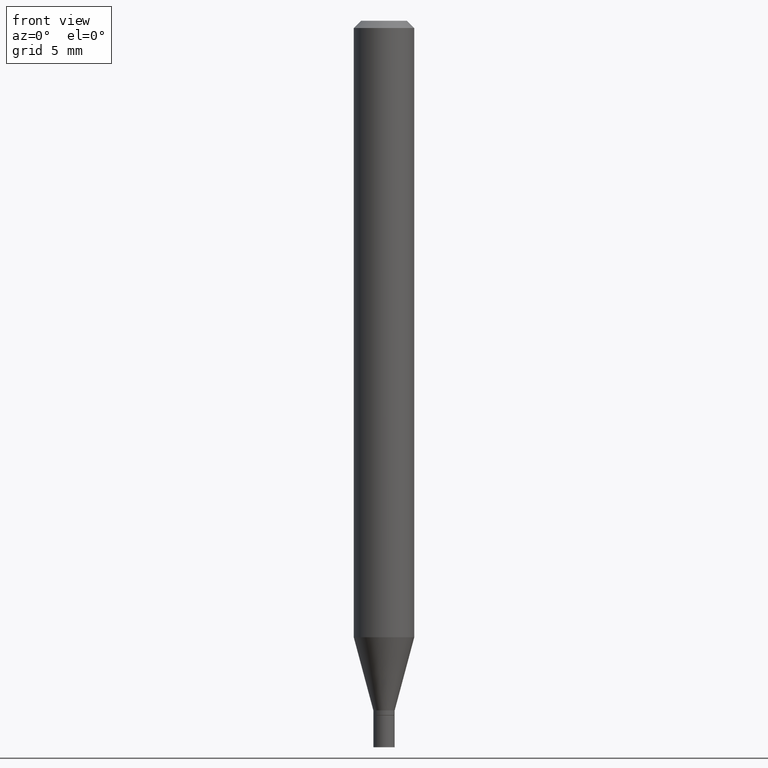
[diagram: clean part render]
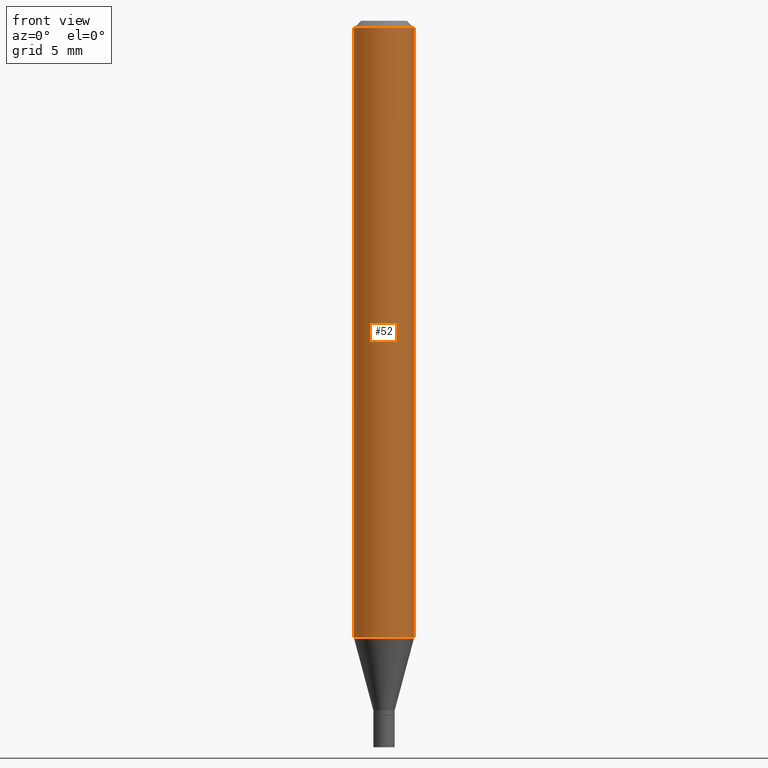
[diagram: same view with one face highlighted and labeled with its STEP entity id]
A machine part, front view. The second image highlights one B-rep face of the part: STEP entity #52.
In plain terms, the highlighted cylindrical surface (edge-blend (fillet) strip) has radius 1.5875 mm, axis along (-0, 0, 1).
Its self-contained STEP definition (entity closure, byte-faithful):
#7 = DIRECTION ( 'NONE',  ( 1.000000000000000000, -6.982962677686266711E-15, 4.876176775795935793E-29 ) ) ;
#20 = DIRECTION ( 'NONE',  ( -2.445468806185136597E-29, 3.491481338843145583E-15, 1.000000000000000000 ) ) ;
#49 = CARTESIAN_POINT ( 'NONE',  ( -0.06250000000000000000, 4.440892098500626162E-16, -3.074334431409316114E-30 ) ) ;
#52 = ADVANCED_FACE ( 'NONE', ( #215 ), #355, .T. ) ;
#58 = AXIS2_PLACEMENT_3D ( 'NONE', #188, #387, #7 ) ;
#59 = CARTESIAN_POINT ( 'NONE',  ( -0.06250000000000000000, -1.804166302005196625E-15, -0.01499999999999999944 ) ) ;
#85 = EDGE_CURVE ( 'NONE', #414, #376, #440, .T. ) ;
#96 = CARTESIAN_POINT ( 'NONE',  ( 0.06250000000000000000, -4.880573970983262678E-15, -1.272851942293460770 ) ) ;
#104 = CARTESIAN_POINT ( 'NONE',  ( 3.668203209277705088E-31, -5.237222008264718399E-17, -0.01499999999999999944 ) ) ;
#114 = EDGE_CURVE ( 'NONE', #337, #414, #429, .T. ) ;
#126 = LINE ( 'NONE', #49, #148 ) ;
#127 = DIRECTION ( 'NONE',  ( 1.000000000000000000, -6.982962677686266711E-15, 0.000000000000000000 ) ) ;
#148 = VECTOR ( 'NONE', #263, 39.37007874015748143 ) ;
#169 = ORIENTED_EDGE ( 'NONE', *, *, #430, .F. ) ;
#181 = ORIENTED_EDGE ( 'NONE', *, *, #114, .T. ) ;
#183 = EDGE_CURVE ( 'NONE', #337, #433, #126, .T. ) ;
#188 = CARTESIAN_POINT ( 'NONE',  ( 0.000000000000000000, 0.000000000000000000, 0.000000000000000000 ) ) ;
#196 = DIRECTION ( 'NONE',  ( 1.000000000000000000, -6.982962677686262766E-15, 0.000000000000000000 ) ) ;
#207 = AXIS2_PLACEMENT_3D ( 'NONE', #104, #20, #127 ) ;
#215 = FACE_OUTER_BOUND ( 'NONE', #248, .T. ) ;
#237 = CARTESIAN_POINT ( 'NONE',  ( -0.06250000000000000000, -4.000049593777808392E-15, -1.272851942293460770 ) ) ;
#248 = EDGE_LOOP ( 'NONE', ( #272, #181, #314, #169 ) ) ;
#263 = DIRECTION ( 'NONE',  ( -2.445468806185136877E-29, 3.491481338843145188E-15, 1.000000000000000000 ) ) ;
#270 = DIRECTION ( 'NONE',  ( -2.445468806185136597E-29, 3.491481338843145583E-15, 1.000000000000000000 ) ) ;
#272 = ORIENTED_EDGE ( 'NONE', *, *, #183, .F. ) ;
#299 = CARTESIAN_POINT ( 'NONE',  ( 0.06250000000000000000, -4.364351673553916694E-16, 3.047610484872459871E-30 ) ) ;
#314 = ORIENTED_EDGE ( 'NONE', *, *, #85, .T. ) ;
#334 = VECTOR ( 'NONE', #405, 39.37007874015748143 ) ;
#337 = VERTEX_POINT ( 'NONE', #237 ) ;
#355 = CYLINDRICAL_SURFACE ( 'NONE', #58, 0.06250000000000000000 ) ;
#376 = VERTEX_POINT ( 'NONE', #455 ) ;
#387 = DIRECTION ( 'NONE',  ( -2.445468806185136597E-29, 3.491481338843145583E-15, 1.000000000000000000 ) ) ;
#405 = DIRECTION ( 'NONE',  ( -2.445468806185136877E-29, 3.491481338843145188E-15, 1.000000000000000000 ) ) ;
#414 = VERTEX_POINT ( 'NONE', #96 ) ;
#429 = CIRCLE ( 'NONE', #462, 0.06250000000000000000 ) ;
#430 = EDGE_CURVE ( 'NONE', #433, #376, #453, .T. ) ;
#433 = VERTEX_POINT ( 'NONE', #59 ) ;
#440 = LINE ( 'NONE', #299, #334 ) ;
#448 = CARTESIAN_POINT ( 'NONE',  ( 3.112719719770822202E-29, -4.444138803627871009E-15, -1.272851942293460770 ) ) ;
#453 = CIRCLE ( 'NONE', #207, 0.06250000000000000000 ) ;
#455 = CARTESIAN_POINT ( 'NONE',  ( 0.06250000000000000000, -4.888073874380388472E-16, -0.01499999999999999944 ) ) ;
#462 = AXIS2_PLACEMENT_3D ( 'NONE', #448, #270, #196 ) ;